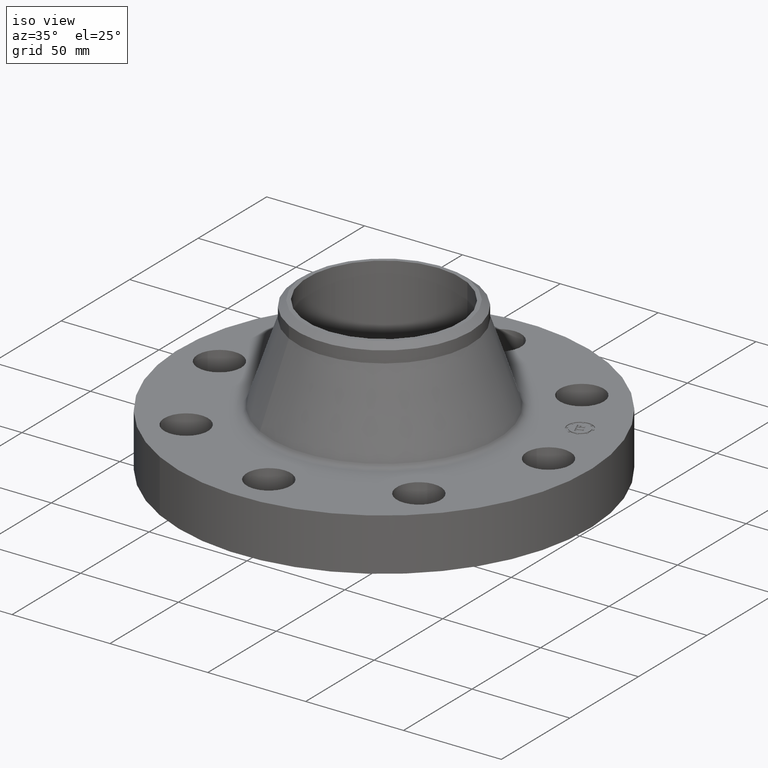
[diagram: clean part render]
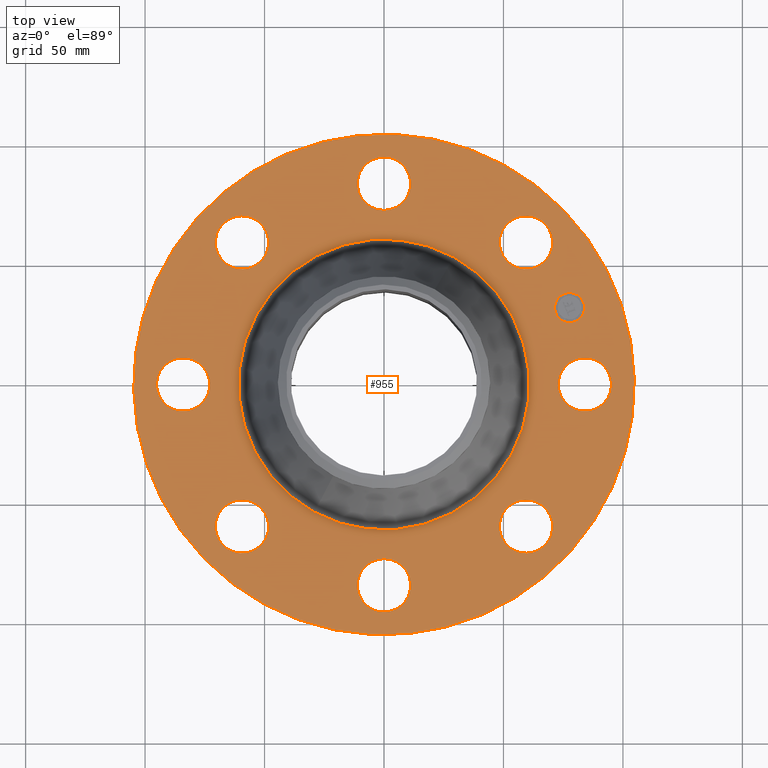
[diagram: tour spotlight — one face highlighted and labeled with its STEP entity id]
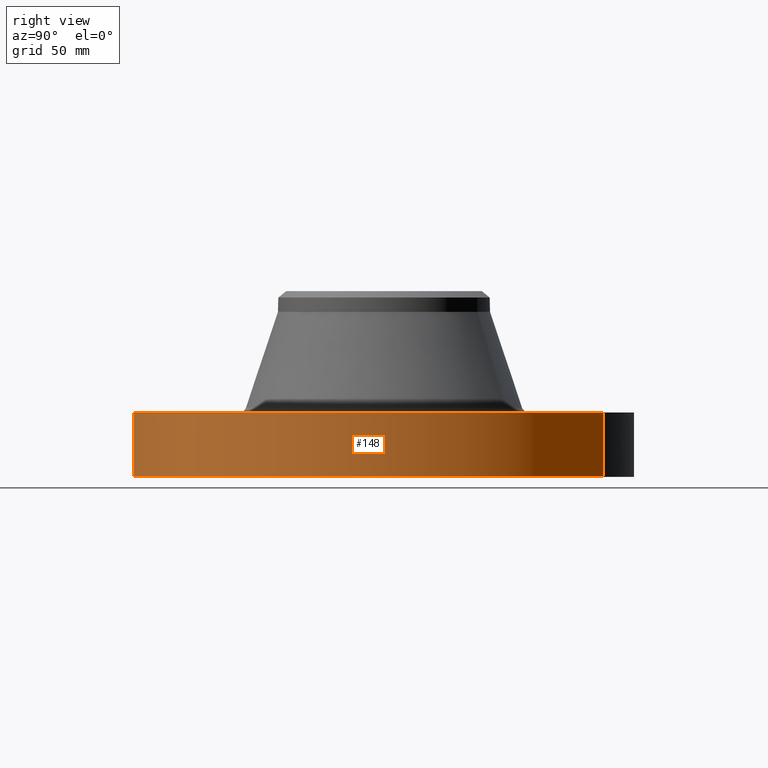
[diagram: tour spotlight — one face highlighted and labeled with its STEP entity id]
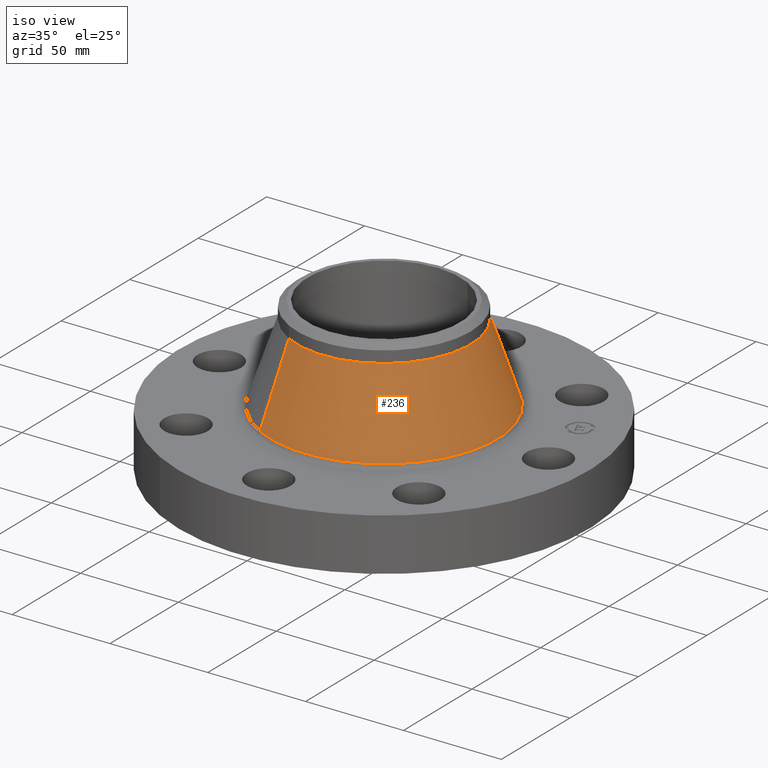
[diagram: tour spotlight — one face highlighted and labeled with its STEP entity id]
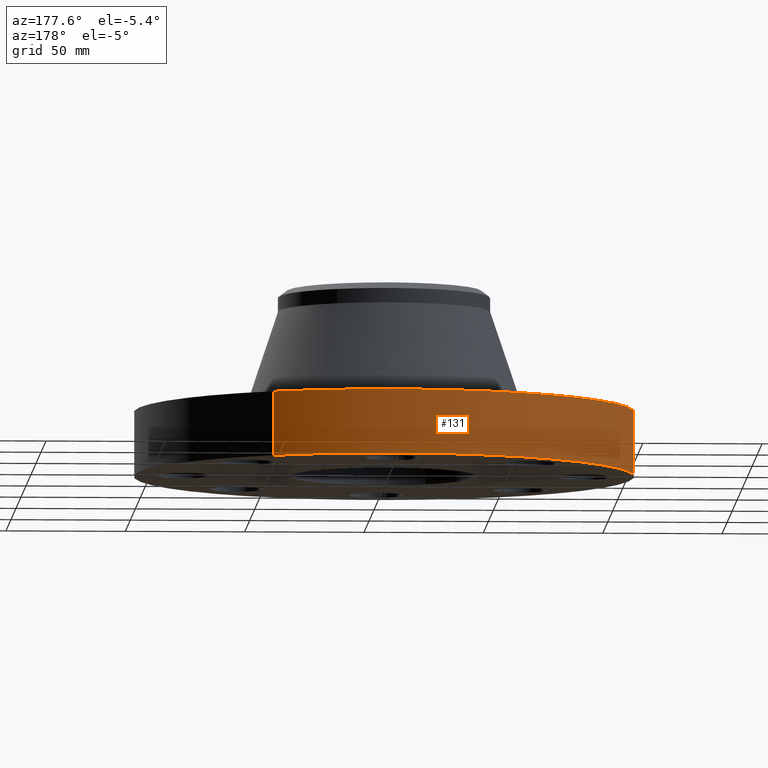
[diagram: tour spotlight — one face highlighted and labeled with its STEP entity id]
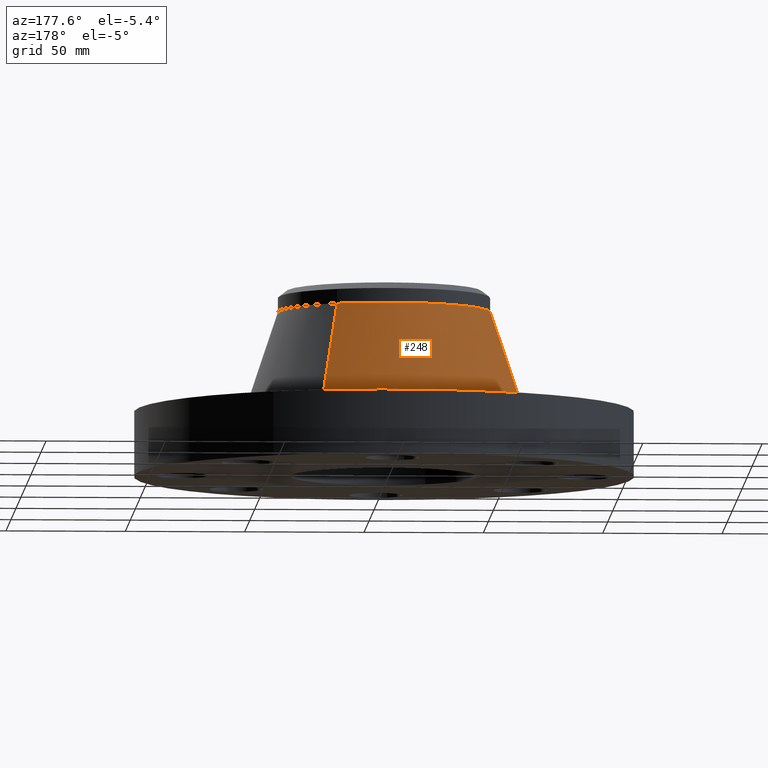
[diagram: tour spotlight — one face highlighted and labeled with its STEP entity id]
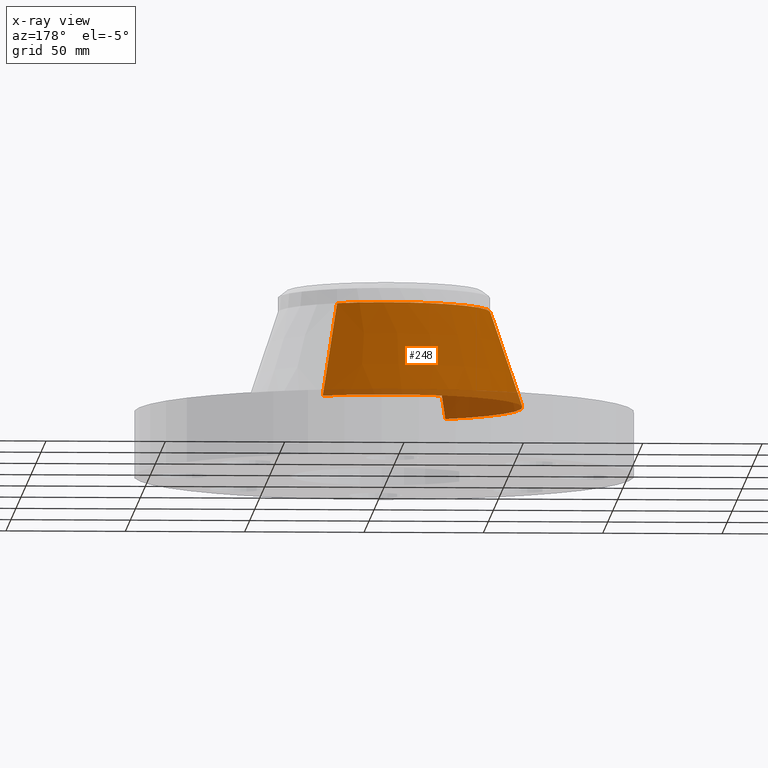
[diagram: x-ray of the same camera — body ghosted, this tour face saturated]
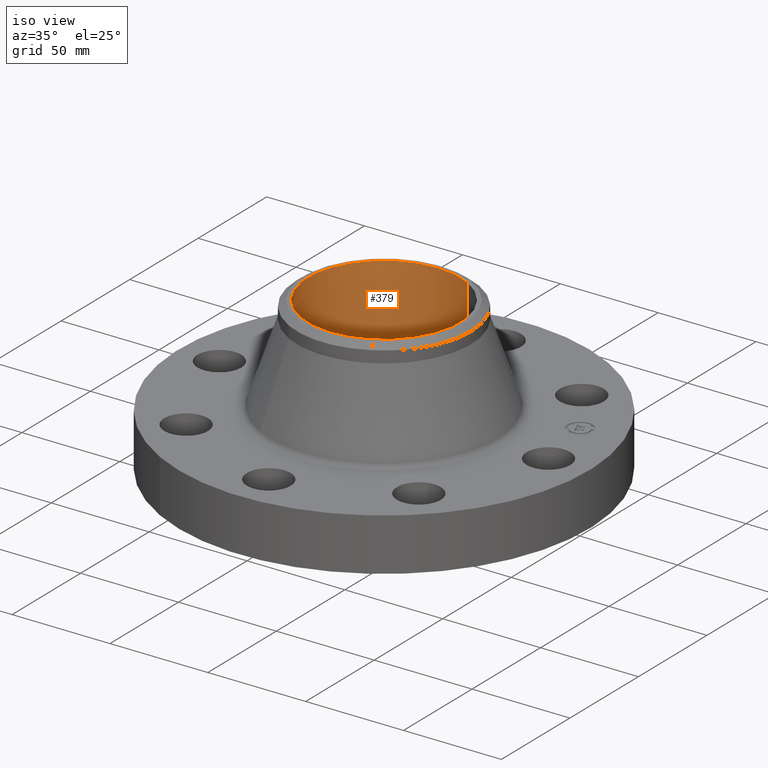
[diagram: tour spotlight — one face highlighted and labeled with its STEP entity id]
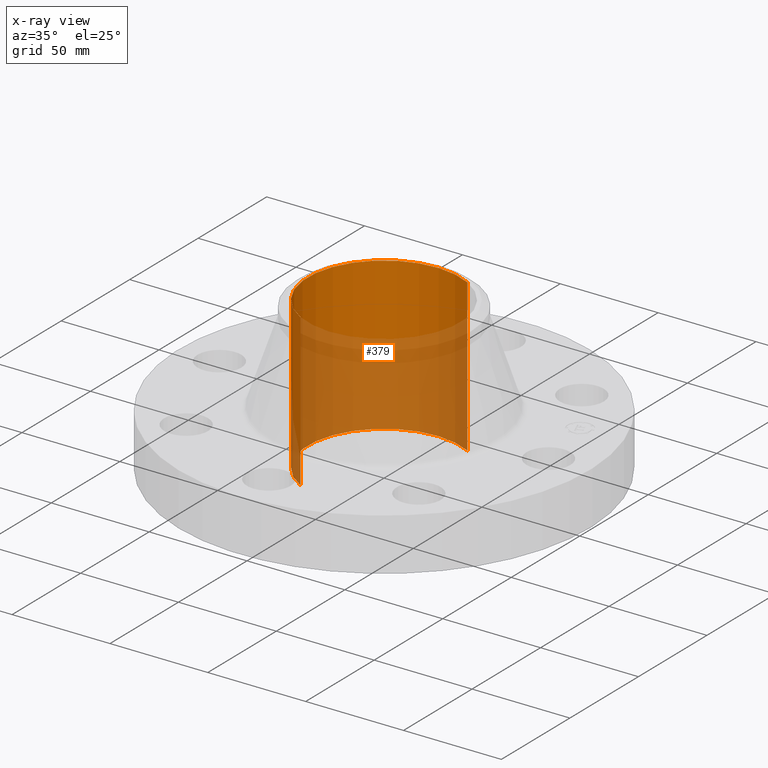
[diagram: x-ray of the same camera — body ghosted, this tour face saturated]
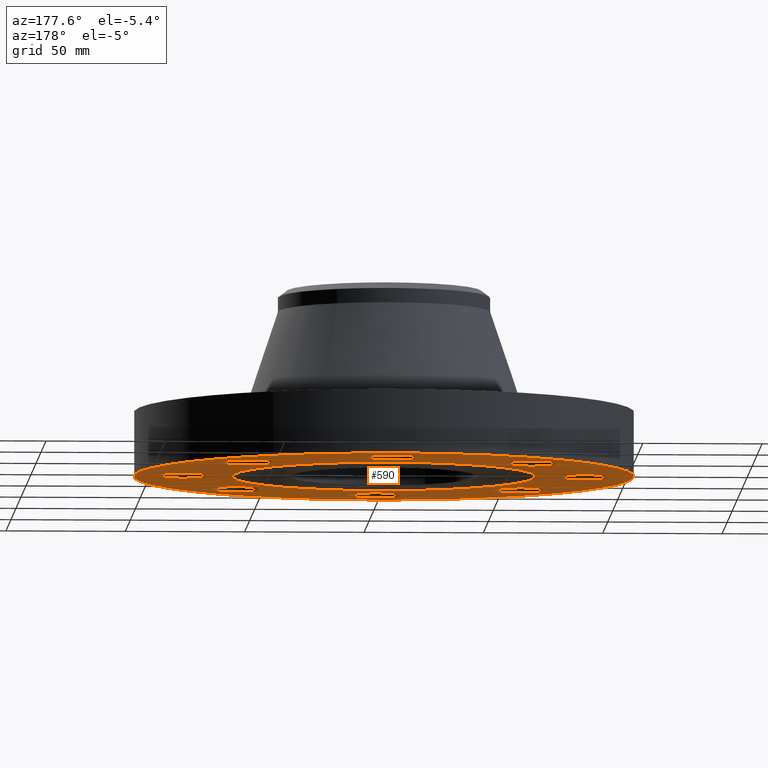
[diagram: tour spotlight — one face highlighted and labeled with its STEP entity id]
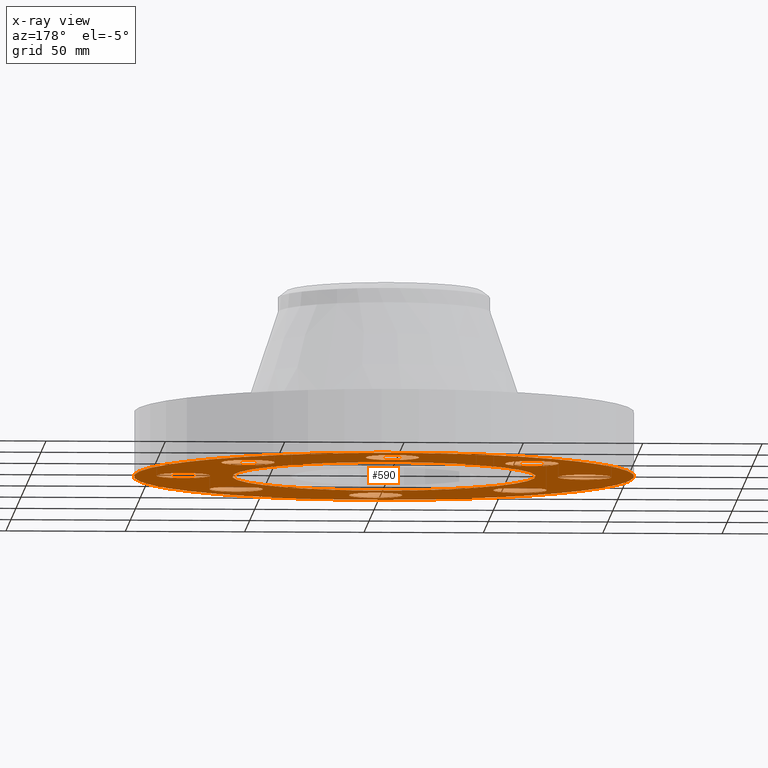
[diagram: x-ray of the same camera — body ghosted, this tour face saturated]
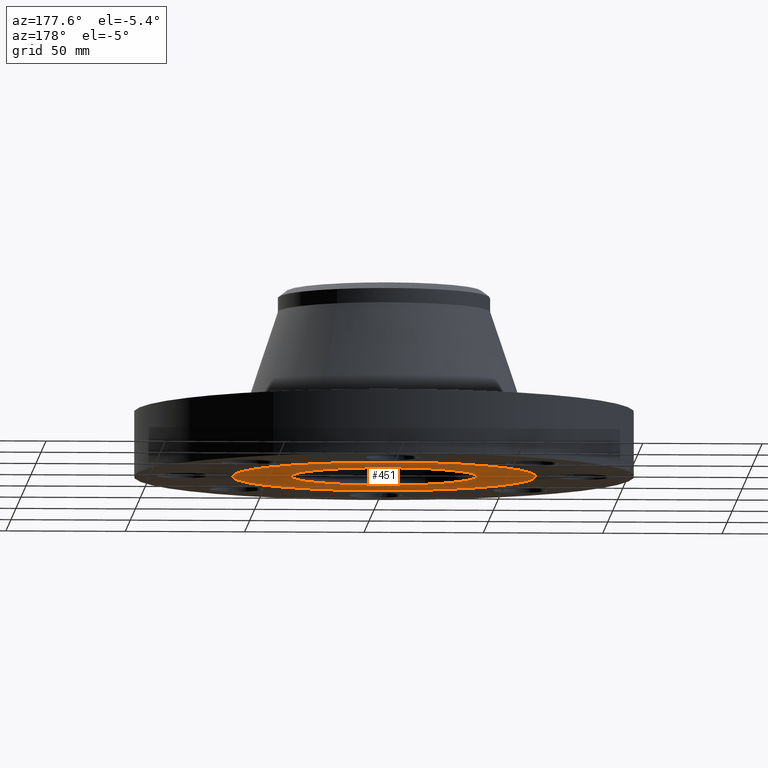
[diagram: tour spotlight — one face highlighted and labeled with its STEP entity id]
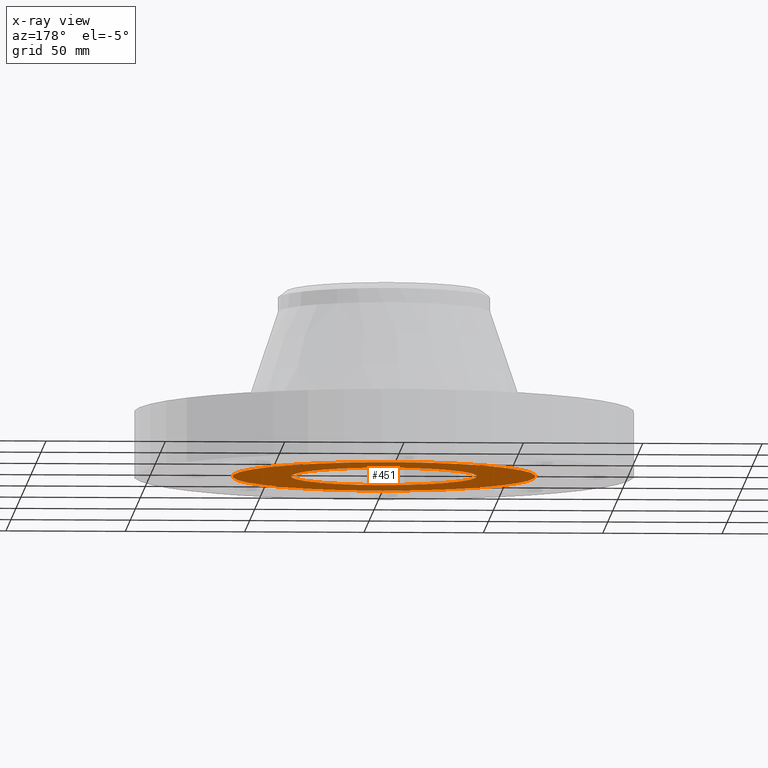
[diagram: x-ray of the same camera — body ghosted, this tour face saturated]
A machine part: a face-by-face anatomy tour. The part has 417 B-rep faces; the first image is the clean iso view, then the 8 largest visible faces are spotlighted one at a time (largest first), each with its STEP entity span.

Face 1 — top view, entity #955. In plain terms, the highlighted planar face has unit normal (0, 0, -1).
Definition (entity closure, byte-faithful):
#65=AXIS2_PLACEMENT_3D('Circle Axis2P3D',#63,#64,$) ;
#82=AXIS2_PLACEMENT_3D('Circle Axis2P3D',#80,#81,$) ;
#115=AXIS2_PLACEMENT_3D('Circle Axis2P3D',#113,#114,$) ;
#139=AXIS2_PLACEMENT_3D('Circle Axis2P3D',#137,#138,$) ;
#156=AXIS2_PLACEMENT_3D('Circle Axis2P3D',#154,#155,$) ;
#191=AXIS2_PLACEMENT_3D('Circle Axis2P3D',#189,#190,$) ;
#612=AXIS2_PLACEMENT_3D('Circle Axis2P3D',#610,#611,$) ;
#624=AXIS2_PLACEMENT_3D('Circle Axis2P3D',#622,#623,$) ;
#655=AXIS2_PLACEMENT_3D('Circle Axis2P3D',#653,#654,$) ;
#667=AXIS2_PLACEMENT_3D('Circle Axis2P3D',#665,#666,$) ;
#698=AXIS2_PLACEMENT_3D('Circle Axis2P3D',#696,#697,$) ;
#710=AXIS2_PLACEMENT_3D('Circle Axis2P3D',#708,#709,$) ;
#741=AXIS2_PLACEMENT_3D('Circle Axis2P3D',#739,#740,$) ;
#753=AXIS2_PLACEMENT_3D('Circle Axis2P3D',#751,#752,$) ;
#784=AXIS2_PLACEMENT_3D('Circle Axis2P3D',#782,#783,$) ;
#796=AXIS2_PLACEMENT_3D('Circle Axis2P3D',#794,#795,$) ;
#827=AXIS2_PLACEMENT_3D('Circle Axis2P3D',#825,#826,$) ;
#839=AXIS2_PLACEMENT_3D('Circle Axis2P3D',#837,#838,$) ;
#870=AXIS2_PLACEMENT_3D('Circle Axis2P3D',#868,#869,$) ;
#882=AXIS2_PLACEMENT_3D('Circle Axis2P3D',#880,#881,$) ;
#895=AXIS2_PLACEMENT_3D('Plane Axis2P3D',#892,#893,#894) ;
#939=AXIS2_PLACEMENT_3D('Circle Axis2P3D',#937,#938,$) ;
#948=AXIS2_PLACEMENT_3D('Circle Axis2P3D',#946,#947,$) ;
#46=CARTESIAN_POINT('Vertex',(2.92386367278,0.210947236987,1.06)) ;
#60=CARTESIAN_POINT('Vertex',(3.69613632725,-0.210947236987,1.06)) ;
#63=CARTESIAN_POINT('Axis2P3D Location',(3.31000000001,0.,1.06)) ;
#80=CARTESIAN_POINT('Axis2P3D Location',(3.31000000001,0.,1.06)) ;
#110=CARTESIAN_POINT('Vertex',(-1.97763034675,-3.62002806781,1.06)) ;
#113=CARTESIAN_POINT('Axis2P3D Location',(0.,0.,1.06)) ;
#117=CARTESIAN_POINT('Vertex',(1.97763034675,3.62002806781,1.06)) ;
#137=CARTESIAN_POINT('Axis2P3D Location',(0.,0.,1.06)) ;
#154=CARTESIAN_POINT('Axis2P3D Location',(0.,0.,1.06)) ;
#158=CARTESIAN_POINT('Vertex',(1.14876916276,2.10280784752,1.06)) ;
#160=CARTESIAN_POINT('Vertex',(-1.14876916276,-2.10280784752,1.06)) ;
#189=CARTESIAN_POINT('Axis2P3D Location',(0.,0.,1.06)) ;
#600=CARTESIAN_POINT('Vertex',(-2.21664605203,1.91832160854,1.06)) ;
#607=CARTESIAN_POINT('Vertex',(-2.46440083944,2.76272528293,1.06)) ;
#610=CARTESIAN_POINT('Axis2P3D Location',(-2.34052344574,2.34052344574,1.06)) ;
#622=CARTESIAN_POINT('Axis2P3D Location',(-2.34052344574,2.34052344574,1.06)) ;
#643=CARTESIAN_POINT('Vertex',(0.210947236987,-2.92386367278,1.06)) ;
#650=CARTESIAN_POINT('Vertex',(-0.210947236987,-3.69613632725,1.06)) ;
#653=CARTESIAN_POINT('Axis2P3D Location',(-3.56803423843E-016,-3.31000000001,1.06)) ;
#665=CARTESIAN_POINT('Axis2P3D Location',(-3.56803423843E-016,-3.31000000001,1.06)) ;
#686=CARTESIAN_POINT('Vertex',(-0.210947236987,2.92386367278,1.06)) ;
#693=CARTESIAN_POINT('Vertex',(0.210947236987,3.69613632725,1.06)) ;
#696=CARTESIAN_POINT('Axis2P3D Location',(-6.08037135779E-016,3.31000000001,1.06)) ;
#708=CARTESIAN_POINT('Axis2P3D Location',(-6.08037135779E-016,3.31000000001,1.06)) ;
#729=CARTESIAN_POINT('Vertex',(-1.91832160854,-2.21664605203,1.06)) ;
#736=CARTESIAN_POINT('Vertex',(-2.76272528293,-2.46440083944,1.06)) ;
#739=CARTESIAN_POINT('Axis2P3D Location',(-2.34052344574,-2.34052344574,1.06)) ;
#751=CARTESIAN_POINT('Axis2P3D Location',(-2.34052344574,-2.34052344574,1.06)) ;
#772=CARTESIAN_POINT('Vertex',(1.91832160854,2.21664605203,1.06)) ;
#779=CARTESIAN_POINT('Vertex',(2.76272528293,2.46440083944,1.06)) ;
#782=CARTESIAN_POINT('Axis2P3D Location',(2.34052344574,2.34052344574,1.06)) ;
#794=CARTESIAN_POINT('Axis2P3D Location',(2.34052344574,2.34052344574,1.06)) ;
#815=CARTESIAN_POINT('Vertex',(-2.92386367278,-0.210947236987,1.06)) ;
#822=CARTESIAN_POINT('Vertex',(-3.69613632725,0.210947236987,1.06)) ;
#825=CARTESIAN_POINT('Axis2P3D Location',(-3.31000000001,-4.05358090519E-016,1.06)) ;
#837=CARTESIAN_POINT('Axis2P3D Location',(-3.31000000001,-4.05358090519E-016,1.06)) ;
#858=CARTESIAN_POINT('Vertex',(2.21664605203,-1.91832160854,1.06)) ;
#865=CARTESIAN_POINT('Vertex',(2.46440083944,-2.76272528293,1.06)) ;
#868=CARTESIAN_POINT('Axis2P3D Location',(2.34052344574,-2.34052344574,1.06)) ;
#880=CARTESIAN_POINT('Axis2P3D Location',(2.34052344574,-2.34052344574,1.06)) ;
#892=CARTESIAN_POINT('Axis2P3D Location',(0.,4.12500000002,1.06)) ;
#937=CARTESIAN_POINT('Axis2P3D Location',(3.05804125262,1.26668216113,1.06)) ;
#941=CARTESIAN_POINT('Vertex',(2.96332710311,1.49534234543,1.06)) ;
#943=CARTESIAN_POINT('Vertex',(3.15275540214,1.03802197684,1.06)) ;
#946=CARTESIAN_POINT('Axis2P3D Location',(3.05804125262,1.26668216113,1.06)) ;
#64=DIRECTION('Axis2P3D Direction',(0.,-0.,-0.0393700787402)) ;
#81=DIRECTION('Axis2P3D Direction',(0.,-0.,-0.0393700787402)) ;
#114=DIRECTION('Axis2P3D Direction',(0.,0.,-0.0393700787402)) ;
#138=DIRECTION('Axis2P3D Direction',(0.,0.,-0.0393700787402)) ;
#155=DIRECTION('Axis2P3D Direction',(0.,0.,-0.0393700787402)) ;
#190=DIRECTION('Axis2P3D Direction',(0.,0.,-0.0393700787402)) ;
#611=DIRECTION('Axis2P3D Direction',(0.,0.,-0.0393700787402)) ;
#623=DIRECTION('Axis2P3D Direction',(0.,0.,-0.0393700787402)) ;
#654=DIRECTION('Axis2P3D Direction',(0.,-0.,-0.0393700787402)) ;
#666=DIRECTION('Axis2P3D Direction',(0.,-0.,-0.0393700787402)) ;
#697=DIRECTION('Axis2P3D Direction',(0.,0.,-0.0393700787402)) ;
#709=DIRECTION('Axis2P3D Direction',(0.,0.,-0.0393700787402)) ;
#740=DIRECTION('Axis2P3D Direction',(-0.,0.,-0.0393700787402)) ;
#752=DIRECTION('Axis2P3D Direction',(-0.,0.,-0.0393700787402)) ;
#783=DIRECTION('Axis2P3D Direction',(0.,0.,-0.0393700787402)) ;
#795=DIRECTION('Axis2P3D Direction',(0.,0.,-0.0393700787402)) ;
#826=DIRECTION('Axis2P3D Direction',(-0.,0.,-0.0393700787402)) ;
#838=DIRECTION('Axis2P3D Direction',(-0.,0.,-0.0393700787402)) ;
#869=DIRECTION('Axis2P3D Direction',(0.,-0.,-0.0393700787402)) ;
#881=DIRECTION('Axis2P3D Direction',(0.,-0.,-0.0393700787402)) ;
#893=DIRECTION('Axis2P3D Direction',(0.,0.,-0.0393700787402)) ;
#894=DIRECTION('Axis2P3D XDirection',(0.0393700787402,0.,0.)) ;
#938=DIRECTION('Axis2P3D Direction',(0.,0.,-0.0393700787402)) ;
#947=DIRECTION('Axis2P3D Direction',(0.,0.,-0.0393700787402)) ;
#898=ORIENTED_EDGE('',*,*,#141,.F.) ;
#899=ORIENTED_EDGE('',*,*,#119,.F.) ;
#902=ORIENTED_EDGE('',*,*,#67,.T.) ;
#903=ORIENTED_EDGE('',*,*,#84,.T.) ;
#906=ORIENTED_EDGE('',*,*,#193,.T.) ;
#907=ORIENTED_EDGE('',*,*,#162,.T.) ;
#910=ORIENTED_EDGE('',*,*,#884,.T.) ;
#911=ORIENTED_EDGE('',*,*,#872,.T.) ;
#914=ORIENTED_EDGE('',*,*,#669,.T.) ;
#915=ORIENTED_EDGE('',*,*,#657,.T.) ;
#918=ORIENTED_EDGE('',*,*,#755,.T.) ;
#919=ORIENTED_EDGE('',*,*,#743,.T.) ;
#922=ORIENTED_EDGE('',*,*,#841,.T.) ;
#923=ORIENTED_EDGE('',*,*,#829,.T.) ;
#926=ORIENTED_EDGE('',*,*,#626,.T.) ;
#927=ORIENTED_EDGE('',*,*,#614,.T.) ;
#930=ORIENTED_EDGE('',*,*,#712,.T.) ;
#931=ORIENTED_EDGE('',*,*,#700,.T.) ;
#934=ORIENTED_EDGE('',*,*,#798,.T.) ;
#935=ORIENTED_EDGE('',*,*,#786,.T.) ;
#952=ORIENTED_EDGE('',*,*,#945,.T.) ;
#953=ORIENTED_EDGE('',*,*,#950,.T.) ;
#904=FACE_BOUND('',#901,.T.) ;
#908=FACE_BOUND('',#905,.T.) ;
#912=FACE_BOUND('',#909,.T.) ;
#916=FACE_BOUND('',#913,.T.) ;
#920=FACE_BOUND('',#917,.T.) ;
#924=FACE_BOUND('',#921,.T.) ;
#928=FACE_BOUND('',#925,.T.) ;
#932=FACE_BOUND('',#929,.T.) ;
#936=FACE_BOUND('',#933,.T.) ;
#954=FACE_BOUND('',#951,.T.) ;
#955=ADVANCED_FACE('PartBody',(#900,#904,#908,#912,#916,#920,#924,#928,#932,#936,#954),#896,.F.) ;
#66=CIRCLE('generated circle',#65,0.440000000002) ;
#83=CIRCLE('generated circle',#82,0.440000000002) ;
#116=CIRCLE('generated circle',#115,4.12500000002) ;
#140=CIRCLE('generated circle',#139,4.12500000002) ;
#157=CIRCLE('generated circle',#156,2.39613677258) ;
#192=CIRCLE('generated circle',#191,2.39613677258) ;
#613=CIRCLE('generated circle',#612,0.440000000002) ;
#625=CIRCLE('generated circle',#624,0.440000000002) ;
#656=CIRCLE('generated circle',#655,0.440000000002) ;
#668=CIRCLE('generated circle',#667,0.440000000002) ;
#699=CIRCLE('generated circle',#698,0.440000000002) ;
#711=CIRCLE('generated circle',#710,0.440000000002) ;
#742=CIRCLE('generated circle',#741,0.440000000002) ;
#754=CIRCLE('generated circle',#753,0.440000000002) ;
#785=CIRCLE('generated circle',#784,0.440000000002) ;
#797=CIRCLE('generated circle',#796,0.440000000002) ;
#828=CIRCLE('generated circle',#827,0.440000000002) ;
#840=CIRCLE('generated circle',#839,0.440000000002) ;
#871=CIRCLE('generated circle',#870,0.440000000002) ;
#883=CIRCLE('generated circle',#882,0.440000000002) ;
#940=CIRCLE('generated circle',#939,0.247500000001) ;
#949=CIRCLE('generated circle',#948,0.247500000001) ;
#67=EDGE_CURVE('',#47,#61,#66,.T.) ;
#84=EDGE_CURVE('',#61,#47,#83,.T.) ;
#119=EDGE_CURVE('',#111,#118,#116,.T.) ;
#141=EDGE_CURVE('',#118,#111,#140,.T.) ;
#162=EDGE_CURVE('',#159,#161,#157,.T.) ;
#193=EDGE_CURVE('',#161,#159,#192,.T.) ;
#614=EDGE_CURVE('',#601,#608,#613,.T.) ;
#626=EDGE_CURVE('',#608,#601,#625,.T.) ;
#657=EDGE_CURVE('',#644,#651,#656,.T.) ;
#669=EDGE_CURVE('',#651,#644,#668,.T.) ;
#700=EDGE_CURVE('',#687,#694,#699,.T.) ;
#712=EDGE_CURVE('',#694,#687,#711,.T.) ;
#743=EDGE_CURVE('',#730,#737,#742,.T.) ;
#755=EDGE_CURVE('',#737,#730,#754,.T.) ;
#786=EDGE_CURVE('',#773,#780,#785,.T.) ;
#798=EDGE_CURVE('',#780,#773,#797,.T.) ;
#829=EDGE_CURVE('',#816,#823,#828,.T.) ;
#841=EDGE_CURVE('',#823,#816,#840,.T.) ;
#872=EDGE_CURVE('',#859,#866,#871,.T.) ;
#884=EDGE_CURVE('',#866,#859,#883,.T.) ;
#945=EDGE_CURVE('',#942,#944,#940,.T.) ;
#950=EDGE_CURVE('',#944,#942,#949,.T.) ;
#897=EDGE_LOOP('',(#898,#899)) ;
#901=EDGE_LOOP('',(#902,#903)) ;
#905=EDGE_LOOP('',(#906,#907)) ;
#909=EDGE_LOOP('',(#910,#911)) ;
#913=EDGE_LOOP('',(#914,#915)) ;
#917=EDGE_LOOP('',(#918,#919)) ;
#921=EDGE_LOOP('',(#922,#923)) ;
#925=EDGE_LOOP('',(#926,#927)) ;
#929=EDGE_LOOP('',(#930,#931)) ;
#933=EDGE_LOOP('',(#934,#935)) ;
#951=EDGE_LOOP('',(#952,#953)) ;
#900=FACE_OUTER_BOUND('',#897,.T.) ;
#896=PLANE('',#895) ;
#47=VERTEX_POINT('',#46) ;
#61=VERTEX_POINT('',#60) ;
#111=VERTEX_POINT('',#110) ;
#118=VERTEX_POINT('',#117) ;
#159=VERTEX_POINT('',#158) ;
#161=VERTEX_POINT('',#160) ;
#601=VERTEX_POINT('',#600) ;
#608=VERTEX_POINT('',#607) ;
#644=VERTEX_POINT('',#643) ;
#651=VERTEX_POINT('',#650) ;
#687=VERTEX_POINT('',#686) ;
#694=VERTEX_POINT('',#693) ;
#730=VERTEX_POINT('',#729) ;
#737=VERTEX_POINT('',#736) ;
#773=VERTEX_POINT('',#772) ;
#780=VERTEX_POINT('',#779) ;
#816=VERTEX_POINT('',#815) ;
#823=VERTEX_POINT('',#822) ;
#859=VERTEX_POINT('',#858) ;
#866=VERTEX_POINT('',#865) ;
#942=VERTEX_POINT('',#941) ;
#944=VERTEX_POINT('',#943) ;

Face 2 — right view, entity #148. In plain terms, the highlighted cylindrical surface (partial cylindrical patch) has radius 104.775 mm, axis along (0, 0, -1).
Definition (entity closure, byte-faithful):
#95=AXIS2_PLACEMENT_3D('Cylinder Axis2P3D',#92,#93,#94) ;
#134=AXIS2_PLACEMENT_3D('Circle Axis2P3D',#132,#133,$) ;
#139=AXIS2_PLACEMENT_3D('Circle Axis2P3D',#137,#138,$) ;
#92=CARTESIAN_POINT('Axis2P3D Location',(0.,0.,1.53000000001)) ;
#101=CARTESIAN_POINT('Vertex',(-1.97763034675,-3.62002806781,2.79741234551E-016)) ;
#103=CARTESIAN_POINT('Vertex',(1.97763034675,3.62002806781,2.79741234551E-016)) ;
#106=CARTESIAN_POINT('Line Origine',(-1.97763034675,-3.62002806781,0.530000000002)) ;
#110=CARTESIAN_POINT('Vertex',(-1.97763034675,-3.62002806781,1.06)) ;
#117=CARTESIAN_POINT('Vertex',(1.97763034675,3.62002806781,1.06)) ;
#120=CARTESIAN_POINT('Line Origine',(1.97763034675,3.62002806781,0.530000000002)) ;
#132=CARTESIAN_POINT('Axis2P3D Location',(0.,0.,0.)) ;
#137=CARTESIAN_POINT('Axis2P3D Location',(0.,0.,1.06)) ;
#93=DIRECTION('Axis2P3D Direction',(0.,0.,-0.0393700787402)) ;
#94=DIRECTION('Axis2P3D XDirection',(0.0188750212049,0.0345504945626,0.)) ;
#107=DIRECTION('Vector Direction',(0.,0.,-0.0393700787402)) ;
#121=DIRECTION('Vector Direction',(0.,0.,-0.0393700787402)) ;
#133=DIRECTION('Axis2P3D Direction',(0.,0.,-0.0393700787402)) ;
#138=DIRECTION('Axis2P3D Direction',(0.,0.,-0.0393700787402)) ;
#108=VECTOR('Line Direction',#107,0.0393700787402) ;
#122=VECTOR('Line Direction',#121,0.0393700787402) ;
#143=ORIENTED_EDGE('',*,*,#136,.F.) ;
#144=ORIENTED_EDGE('',*,*,#124,.T.) ;
#145=ORIENTED_EDGE('',*,*,#141,.T.) ;
#146=ORIENTED_EDGE('',*,*,#112,.F.) ;
#148=ADVANCED_FACE('PartBody',(#147),#96,.T.) ;
#135=CIRCLE('generated circle',#134,4.12500000002) ;
#140=CIRCLE('generated circle',#139,4.12500000002) ;
#96=CYLINDRICAL_SURFACE('generated cylinder',#95,4.12500000002) ;
#112=EDGE_CURVE('',#102,#111,#109,.F.) ;
#124=EDGE_CURVE('',#104,#118,#123,.F.) ;
#136=EDGE_CURVE('',#104,#102,#135,.T.) ;
#141=EDGE_CURVE('',#118,#111,#140,.T.) ;
#142=EDGE_LOOP('',(#143,#144,#145,#146)) ;
#147=FACE_OUTER_BOUND('',#142,.T.) ;
#109=LINE('Line',#106,#108) ;
#123=LINE('Line',#120,#122) ;
#102=VERTEX_POINT('',#101) ;
#104=VERTEX_POINT('',#103) ;
#111=VERTEX_POINT('',#110) ;
#118=VERTEX_POINT('',#117) ;

Face 3 — iso view, entity #236. In plain terms, the highlighted conical surface has half-angle 18.658 deg.
Definition (entity closure, byte-faithful):
#172=AXIS2_PLACEMENT_3D('Circle Axis2P3D',#170,#171,$) ;
#209=AXIS2_PLACEMENT_3D('Cone Axis2P3D',#206,#207,#208) ;
#220=AXIS2_PLACEMENT_3D('Circle Axis2P3D',#218,#219,$) ;
#167=CARTESIAN_POINT('Vertex',(1.09426162229,2.00303246395,1.14160988584)) ;
#170=CARTESIAN_POINT('Axis2P3D Location',(0.,0.,1.14160988584)) ;
#174=CARTESIAN_POINT('Vertex',(-1.09426162229,-2.00303246395,1.14160988584)) ;
#206=CARTESIAN_POINT('Axis2P3D Location',(0.,0.,2.71845634604)) ;
#211=CARTESIAN_POINT('Line Origine',(0.966628157427,1.76940097363,1.93003311594)) ;
#215=CARTESIAN_POINT('Vertex',(0.838994692561,1.53576948331,2.71845634604)) ;
#218=CARTESIAN_POINT('Axis2P3D Location',(0.,0.,2.71845634604)) ;
#222=CARTESIAN_POINT('Vertex',(-0.838994692561,-1.53576948331,2.71845634604)) ;
#225=CARTESIAN_POINT('Line Origine',(-0.966628157427,-1.76940097363,1.93003311594)) ;
#171=DIRECTION('Axis2P3D Direction',(0.,0.,-0.0393700787402)) ;
#207=DIRECTION('Axis2P3D Direction',(0.,0.,-0.0393700787402)) ;
#208=DIRECTION('Axis2P3D XDirection',(-0.0188750212049,-0.0345504945626,0.)) ;
#212=DIRECTION('Vector Direction',(0.00603845182398,0.0110533119219,-0.0373009985809)) ;
#219=DIRECTION('Axis2P3D Direction',(0.,0.,-0.0393700787402)) ;
#226=DIRECTION('Vector Direction',(-0.00603845182398,-0.0110533119219,-0.0373009985809)) ;
#213=VECTOR('Line Direction',#212,0.0393700787402) ;
#227=VECTOR('Line Direction',#226,0.0393700787402) ;
#231=ORIENTED_EDGE('',*,*,#176,.F.) ;
#232=ORIENTED_EDGE('',*,*,#217,.T.) ;
#233=ORIENTED_EDGE('',*,*,#224,.T.) ;
#234=ORIENTED_EDGE('',*,*,#229,.F.) ;
#236=ADVANCED_FACE('PartBody',(#235),#210,.T.) ;
#173=CIRCLE('generated circle',#172,2.2824433289) ;
#221=CIRCLE('generated circle',#220,1.75000000001) ;
#210=CONICAL_SURFACE('Cone',#209,1.75000000001,0.325642534325) ;
#176=EDGE_CURVE('',#168,#175,#173,.T.) ;
#217=EDGE_CURVE('',#168,#216,#214,.F.) ;
#224=EDGE_CURVE('',#216,#223,#221,.T.) ;
#229=EDGE_CURVE('',#175,#223,#228,.F.) ;
#230=EDGE_LOOP('',(#231,#232,#233,#234)) ;
#235=FACE_OUTER_BOUND('',#230,.T.) ;
#214=LINE('Line',#211,#213) ;
#228=LINE('Line',#225,#227) ;
#168=VERTEX_POINT('',#167) ;
#175=VERTEX_POINT('',#174) ;
#216=VERTEX_POINT('',#215) ;
#223=VERTEX_POINT('',#222) ;

Face 4 — auxiliary view, entity #131. In plain terms, the highlighted cylindrical surface (partial cylindrical patch) has radius 104.775 mm, axis along (0, 0, -1).
Definition (entity closure, byte-faithful):
#95=AXIS2_PLACEMENT_3D('Cylinder Axis2P3D',#92,#93,#94) ;
#99=AXIS2_PLACEMENT_3D('Circle Axis2P3D',#97,#98,$) ;
#115=AXIS2_PLACEMENT_3D('Circle Axis2P3D',#113,#114,$) ;
#92=CARTESIAN_POINT('Axis2P3D Location',(0.,0.,1.53000000001)) ;
#97=CARTESIAN_POINT('Axis2P3D Location',(0.,0.,0.)) ;
#101=CARTESIAN_POINT('Vertex',(-1.97763034675,-3.62002806781,2.79741234551E-016)) ;
#103=CARTESIAN_POINT('Vertex',(1.97763034675,3.62002806781,2.79741234551E-016)) ;
#106=CARTESIAN_POINT('Line Origine',(-1.97763034675,-3.62002806781,0.530000000002)) ;
#110=CARTESIAN_POINT('Vertex',(-1.97763034675,-3.62002806781,1.06)) ;
#113=CARTESIAN_POINT('Axis2P3D Location',(0.,0.,1.06)) ;
#117=CARTESIAN_POINT('Vertex',(1.97763034675,3.62002806781,1.06)) ;
#120=CARTESIAN_POINT('Line Origine',(1.97763034675,3.62002806781,0.530000000002)) ;
#93=DIRECTION('Axis2P3D Direction',(0.,0.,-0.0393700787402)) ;
#94=DIRECTION('Axis2P3D XDirection',(0.0188750212049,0.0345504945626,0.)) ;
#98=DIRECTION('Axis2P3D Direction',(0.,0.,-0.0393700787402)) ;
#107=DIRECTION('Vector Direction',(0.,0.,-0.0393700787402)) ;
#114=DIRECTION('Axis2P3D Direction',(0.,0.,-0.0393700787402)) ;
#121=DIRECTION('Vector Direction',(0.,0.,-0.0393700787402)) ;
#108=VECTOR('Line Direction',#107,0.0393700787402) ;
#122=VECTOR('Line Direction',#121,0.0393700787402) ;
#126=ORIENTED_EDGE('',*,*,#105,.F.) ;
#127=ORIENTED_EDGE('',*,*,#112,.T.) ;
#128=ORIENTED_EDGE('',*,*,#119,.T.) ;
#129=ORIENTED_EDGE('',*,*,#124,.F.) ;
#131=ADVANCED_FACE('PartBody',(#130),#96,.T.) ;
#100=CIRCLE('generated circle',#99,4.12500000002) ;
#116=CIRCLE('generated circle',#115,4.12500000002) ;
#96=CYLINDRICAL_SURFACE('generated cylinder',#95,4.12500000002) ;
#105=EDGE_CURVE('',#102,#104,#100,.T.) ;
#112=EDGE_CURVE('',#102,#111,#109,.F.) ;
#119=EDGE_CURVE('',#111,#118,#116,.T.) ;
#124=EDGE_CURVE('',#104,#118,#123,.F.) ;
#125=EDGE_LOOP('',(#126,#127,#128,#129)) ;
#130=FACE_OUTER_BOUND('',#125,.T.) ;
#109=LINE('Line',#106,#108) ;
#123=LINE('Line',#120,#122) ;
#102=VERTEX_POINT('',#101) ;
#104=VERTEX_POINT('',#103) ;
#111=VERTEX_POINT('',#110) ;
#118=VERTEX_POINT('',#117) ;

Face 5 — auxiliary view, entity #248. An x-ray twin of the same camera follows (body ghosted, this face saturated) — the face is partly hidden behind the body. In plain terms, the highlighted conical surface has half-angle 18.658 deg.
Definition (entity closure, byte-faithful):
#196=AXIS2_PLACEMENT_3D('Circle Axis2P3D',#194,#195,$) ;
#209=AXIS2_PLACEMENT_3D('Cone Axis2P3D',#206,#207,#208) ;
#239=AXIS2_PLACEMENT_3D('Circle Axis2P3D',#237,#238,$) ;
#167=CARTESIAN_POINT('Vertex',(1.09426162229,2.00303246395,1.14160988584)) ;
#174=CARTESIAN_POINT('Vertex',(-1.09426162229,-2.00303246395,1.14160988584)) ;
#194=CARTESIAN_POINT('Axis2P3D Location',(0.,0.,1.14160988584)) ;
#206=CARTESIAN_POINT('Axis2P3D Location',(0.,0.,2.71845634604)) ;
#211=CARTESIAN_POINT('Line Origine',(0.966628157427,1.76940097363,1.93003311594)) ;
#215=CARTESIAN_POINT('Vertex',(0.838994692561,1.53576948331,2.71845634604)) ;
#222=CARTESIAN_POINT('Vertex',(-0.838994692561,-1.53576948331,2.71845634604)) ;
#225=CARTESIAN_POINT('Line Origine',(-0.966628157427,-1.76940097363,1.93003311594)) ;
#237=CARTESIAN_POINT('Axis2P3D Location',(0.,0.,2.71845634604)) ;
#195=DIRECTION('Axis2P3D Direction',(0.,0.,-0.0393700787402)) ;
#207=DIRECTION('Axis2P3D Direction',(0.,0.,-0.0393700787402)) ;
#208=DIRECTION('Axis2P3D XDirection',(-0.0188750212049,-0.0345504945626,0.)) ;
#212=DIRECTION('Vector Direction',(0.00603845182398,0.0110533119219,-0.0373009985809)) ;
#226=DIRECTION('Vector Direction',(-0.00603845182398,-0.0110533119219,-0.0373009985809)) ;
#238=DIRECTION('Axis2P3D Direction',(0.,0.,-0.0393700787402)) ;
#213=VECTOR('Line Direction',#212,0.0393700787402) ;
#227=VECTOR('Line Direction',#226,0.0393700787402) ;
#243=ORIENTED_EDGE('',*,*,#198,.F.) ;
#244=ORIENTED_EDGE('',*,*,#229,.T.) ;
#245=ORIENTED_EDGE('',*,*,#241,.T.) ;
#246=ORIENTED_EDGE('',*,*,#217,.F.) ;
#248=ADVANCED_FACE('PartBody',(#247),#210,.T.) ;
#197=CIRCLE('generated circle',#196,2.2824433289) ;
#240=CIRCLE('generated circle',#239,1.75000000001) ;
#210=CONICAL_SURFACE('Cone',#209,1.75000000001,0.325642534325) ;
#198=EDGE_CURVE('',#175,#168,#197,.T.) ;
#217=EDGE_CURVE('',#168,#216,#214,.F.) ;
#229=EDGE_CURVE('',#175,#223,#228,.F.) ;
#241=EDGE_CURVE('',#223,#216,#240,.T.) ;
#242=EDGE_LOOP('',(#243,#244,#245,#246)) ;
#247=FACE_OUTER_BOUND('',#242,.T.) ;
#214=LINE('Line',#211,#213) ;
#228=LINE('Line',#225,#227) ;
#168=VERTEX_POINT('',#167) ;
#175=VERTEX_POINT('',#174) ;
#216=VERTEX_POINT('',#215) ;
#223=VERTEX_POINT('',#222) ;

Face 6 — iso view, entity #379. An x-ray twin of the same camera follows (body ghosted, this face saturated) — the face is partly hidden behind the body. In plain terms, the highlighted cylindrical surface (partial cylindrical patch) has radius 38.9636 mm, axis along (0, 0, -1).
Definition (entity closure, byte-faithful):
#343=AXIS2_PLACEMENT_3D('Cylinder Axis2P3D',#340,#341,#342) ;
#347=AXIS2_PLACEMENT_3D('Circle Axis2P3D',#345,#346,$) ;
#363=AXIS2_PLACEMENT_3D('Circle Axis2P3D',#361,#362,$) ;
#340=CARTESIAN_POINT('Axis2P3D Location',(0.,0.,1.53000000001)) ;
#345=CARTESIAN_POINT('Axis2P3D Location',(0.,0.,3.06000000001)) ;
#349=CARTESIAN_POINT('Vertex',(-0.735438776222,-1.34621164995,3.06000000001)) ;
#351=CARTESIAN_POINT('Vertex',(0.735438776222,1.34621164995,3.06000000001)) ;
#354=CARTESIAN_POINT('Line Origine',(-0.735438776222,-1.34621164995,1.53000000001)) ;
#358=CARTESIAN_POINT('Vertex',(-0.735438776222,-1.34621164995,-3.07715358006E-015)) ;
#361=CARTESIAN_POINT('Axis2P3D Location',(0.,0.,-3.35689481461E-015)) ;
#365=CARTESIAN_POINT('Vertex',(0.735438776222,1.34621164995,-3.07715358006E-015)) ;
#368=CARTESIAN_POINT('Line Origine',(0.735438776222,1.34621164995,1.53000000001)) ;
#341=DIRECTION('Axis2P3D Direction',(0.,0.,-0.0393700787402)) ;
#342=DIRECTION('Axis2P3D XDirection',(0.0188750212049,0.0345504945626,0.)) ;
#346=DIRECTION('Axis2P3D Direction',(0.,0.,-0.0393700787402)) ;
#355=DIRECTION('Vector Direction',(0.,0.,-0.0393700787402)) ;
#362=DIRECTION('Axis2P3D Direction',(0.,0.,-0.0393700787402)) ;
#369=DIRECTION('Vector Direction',(0.,0.,-0.0393700787402)) ;
#356=VECTOR('Line Direction',#355,0.0393700787402) ;
#370=VECTOR('Line Direction',#369,0.0393700787402) ;
#374=ORIENTED_EDGE('',*,*,#353,.F.) ;
#375=ORIENTED_EDGE('',*,*,#360,.T.) ;
#376=ORIENTED_EDGE('',*,*,#367,.T.) ;
#377=ORIENTED_EDGE('',*,*,#372,.F.) ;
#379=ADVANCED_FACE('PartBody',(#378),#344,.F.) ;
#348=CIRCLE('generated circle',#347,1.53400000001) ;
#364=CIRCLE('generated circle',#363,1.53400000001) ;
#344=CYLINDRICAL_SURFACE('generated cylinder',#343,1.53400000001) ;
#353=EDGE_CURVE('',#350,#352,#348,.T.) ;
#360=EDGE_CURVE('',#350,#359,#357,.T.) ;
#367=EDGE_CURVE('',#359,#366,#364,.T.) ;
#372=EDGE_CURVE('',#352,#366,#371,.T.) ;
#373=EDGE_LOOP('',(#374,#375,#376,#377)) ;
#378=FACE_OUTER_BOUND('',#373,.T.) ;
#357=LINE('Line',#354,#356) ;
#371=LINE('Line',#368,#370) ;
#350=VERTEX_POINT('',#349) ;
#352=VERTEX_POINT('',#351) ;
#359=VERTEX_POINT('',#358) ;
#366=VERTEX_POINT('',#365) ;

Face 7 — auxiliary view, entity #590. An x-ray twin of the same camera follows (body ghosted, this face saturated) — the face is partly hidden behind the body. In plain terms, the highlighted planar face has unit normal (0, 0, -1).
Definition (entity closure, byte-faithful):
#51=AXIS2_PLACEMENT_3D('Circle Axis2P3D',#49,#50,$) ;
#77=AXIS2_PLACEMENT_3D('Circle Axis2P3D',#75,#76,$) ;
#99=AXIS2_PLACEMENT_3D('Circle Axis2P3D',#97,#98,$) ;
#134=AXIS2_PLACEMENT_3D('Circle Axis2P3D',#132,#133,$) ;
#427=AXIS2_PLACEMENT_3D('Plane Axis2P3D',#424,#425,#426) ;
#431=AXIS2_PLACEMENT_3D('Circle Axis2P3D',#429,#430,$) ;
#440=AXIS2_PLACEMENT_3D('Circle Axis2P3D',#438,#439,$) ;
#466=AXIS2_PLACEMENT_3D('Circle Axis2P3D',#464,#465,$) ;
#475=AXIS2_PLACEMENT_3D('Circle Axis2P3D',#473,#474,$) ;
#484=AXIS2_PLACEMENT_3D('Circle Axis2P3D',#482,#483,$) ;
#493=AXIS2_PLACEMENT_3D('Circle Axis2P3D',#491,#492,$) ;
#502=AXIS2_PLACEMENT_3D('Circle Axis2P3D',#500,#501,$) ;
#511=AXIS2_PLACEMENT_3D('Circle Axis2P3D',#509,#510,$) ;
#520=AXIS2_PLACEMENT_3D('Circle Axis2P3D',#518,#519,$) ;
#529=AXIS2_PLACEMENT_3D('Circle Axis2P3D',#527,#528,$) ;
#538=AXIS2_PLACEMENT_3D('Circle Axis2P3D',#536,#537,$) ;
#547=AXIS2_PLACEMENT_3D('Circle Axis2P3D',#545,#546,$) ;
#556=AXIS2_PLACEMENT_3D('Circle Axis2P3D',#554,#555,$) ;
#565=AXIS2_PLACEMENT_3D('Circle Axis2P3D',#563,#564,$) ;
#574=AXIS2_PLACEMENT_3D('Circle Axis2P3D',#572,#573,$) ;
#583=AXIS2_PLACEMENT_3D('Circle Axis2P3D',#581,#582,$) ;
#44=CARTESIAN_POINT('Vertex',(2.92386367278,0.210947236987,-1.39870617276E-016)) ;
#49=CARTESIAN_POINT('Axis2P3D Location',(3.31000000001,0.,0.)) ;
#53=CARTESIAN_POINT('Vertex',(3.69613632725,-0.210947236987,-1.39870617276E-016)) ;
#75=CARTESIAN_POINT('Axis2P3D Location',(3.31000000001,0.,0.)) ;
#97=CARTESIAN_POINT('Axis2P3D Location',(0.,0.,0.)) ;
#101=CARTESIAN_POINT('Vertex',(-1.97763034675,-3.62002806781,2.79741234551E-016)) ;
#103=CARTESIAN_POINT('Vertex',(1.97763034675,3.62002806781,2.79741234551E-016)) ;
#132=CARTESIAN_POINT('Axis2P3D Location',(0.,0.,0.)) ;
#424=CARTESIAN_POINT('Axis2P3D Location',(0.,1.53400000001,0.)) ;
#429=CARTESIAN_POINT('Axis2P3D Location',(0.,0.,0.)) ;
#433=CARTESIAN_POINT('Vertex',(-1.19856384652,-2.19395640473,0.)) ;
#435=CARTESIAN_POINT('Vertex',(1.19856384652,2.19395640473,0.)) ;
#438=CARTESIAN_POINT('Axis2P3D Location',(0.,0.,0.)) ;
#464=CARTESIAN_POINT('Axis2P3D Location',(2.34052344574,-2.34052344574,0.)) ;
#468=CARTESIAN_POINT('Vertex',(2.21664605203,-1.91832160854,0.)) ;
#470=CARTESIAN_POINT('Vertex',(2.46440083944,-2.76272528293,-1.39870617276E-016)) ;
#473=CARTESIAN_POINT('Axis2P3D Location',(2.34052344574,-2.34052344574,0.)) ;
#482=CARTESIAN_POINT('Axis2P3D Location',(0.,-3.31000000001,0.)) ;
#486=CARTESIAN_POINT('Vertex',(0.210947236987,-2.92386367278,0.)) ;
#488=CARTESIAN_POINT('Vertex',(-0.210947236987,-3.69613632725,-1.39870617276E-016)) ;
#491=CARTESIAN_POINT('Axis2P3D Location',(-5.24514814784E-016,-3.31000000001,0.)) ;
#500=CARTESIAN_POINT('Axis2P3D Location',(-2.34052344574,-2.34052344574,0.)) ;
#504=CARTESIAN_POINT('Vertex',(-1.91832160854,-2.21664605203,0.)) ;
#506=CARTESIAN_POINT('Vertex',(-2.76272528293,-2.46440083944,-1.39870617276E-016)) ;
#509=CARTESIAN_POINT('Axis2P3D Location',(-2.34052344574,-2.34052344574,0.)) ;
#518=CARTESIAN_POINT('Axis2P3D Location',(-3.31000000001,-8.39223703654E-016,0.)) ;
#522=CARTESIAN_POINT('Vertex',(-2.92386367278,-0.210947236987,0.)) ;
#524=CARTESIAN_POINT('Vertex',(-3.69613632725,0.210947236987,-1.39870617276E-016)) ;
#527=CARTESIAN_POINT('Axis2P3D Location',(-3.31000000001,-2.79741234551E-016,0.)) ;
#536=CARTESIAN_POINT('Axis2P3D Location',(-2.34052344574,2.34052344574,0.)) ;
#540=CARTESIAN_POINT('Vertex',(-2.21664605203,1.91832160854,0.)) ;
#542=CARTESIAN_POINT('Vertex',(-2.46440083944,2.76272528293,-1.39870617276E-016)) ;
#545=CARTESIAN_POINT('Axis2P3D Location',(-2.34052344574,2.34052344574,0.)) ;
#554=CARTESIAN_POINT('Axis2P3D Location',(-6.2941777774E-016,3.31000000001,0.)) ;
#558=CARTESIAN_POINT('Vertex',(-0.210947236987,2.92386367278,0.)) ;
#560=CARTESIAN_POINT('Vertex',(0.210947236987,3.69613632725,-1.39870617276E-016)) ;
#563=CARTESIAN_POINT('Axis2P3D Location',(-7.34320740697E-016,3.31000000001,0.)) ;
#572=CARTESIAN_POINT('Axis2P3D Location',(2.34052344574,2.34052344574,0.)) ;
#576=CARTESIAN_POINT('Vertex',(1.91832160854,2.21664605203,0.)) ;
#578=CARTESIAN_POINT('Vertex',(2.76272528293,2.46440083944,-1.39870617276E-016)) ;
#581=CARTESIAN_POINT('Axis2P3D Location',(2.34052344574,2.34052344574,0.)) ;
#50=DIRECTION('Axis2P3D Direction',(0.,-0.,-0.0393700787402)) ;
#76=DIRECTION('Axis2P3D Direction',(0.,-0.,-0.0393700787402)) ;
#98=DIRECTION('Axis2P3D Direction',(0.,0.,-0.0393700787402)) ;
#133=DIRECTION('Axis2P3D Direction',(0.,0.,-0.0393700787402)) ;
#425=DIRECTION('Axis2P3D Direction',(0.,0.,-0.0393700787402)) ;
#426=DIRECTION('Axis2P3D XDirection',(0.0393700787402,0.,0.)) ;
#430=DIRECTION('Axis2P3D Direction',(0.,0.,-0.0393700787402)) ;
#439=DIRECTION('Axis2P3D Direction',(0.,0.,-0.0393700787402)) ;
#465=DIRECTION('Axis2P3D Direction',(0.,0.,-0.0393700787402)) ;
#474=DIRECTION('Axis2P3D Direction',(0.,0.,-0.0393700787402)) ;
#483=DIRECTION('Axis2P3D Direction',(0.,0.,-0.0393700787402)) ;
#492=DIRECTION('Axis2P3D Direction',(0.,0.,-0.0393700787402)) ;
#501=DIRECTION('Axis2P3D Direction',(0.,0.,-0.0393700787402)) ;
#510=DIRECTION('Axis2P3D Direction',(0.,0.,-0.0393700787402)) ;
#519=DIRECTION('Axis2P3D Direction',(0.,0.,-0.0393700787402)) ;
#528=DIRECTION('Axis2P3D Direction',(0.,0.,-0.0393700787402)) ;
#537=DIRECTION('Axis2P3D Direction',(0.,0.,-0.0393700787402)) ;
#546=DIRECTION('Axis2P3D Direction',(0.,0.,-0.0393700787402)) ;
#555=DIRECTION('Axis2P3D Direction',(0.,0.,-0.0393700787402)) ;
#564=DIRECTION('Axis2P3D Direction',(0.,0.,-0.0393700787402)) ;
#573=DIRECTION('Axis2P3D Direction',(0.,0.,-0.0393700787402)) ;
#582=DIRECTION('Axis2P3D Direction',(0.,0.,-0.0393700787402)) ;
#453=ORIENTED_EDGE('',*,*,#105,.T.) ;
#454=ORIENTED_EDGE('',*,*,#136,.T.) ;
#457=ORIENTED_EDGE('',*,*,#79,.F.) ;
#458=ORIENTED_EDGE('',*,*,#55,.F.) ;
#461=ORIENTED_EDGE('',*,*,#442,.F.) ;
#462=ORIENTED_EDGE('',*,*,#437,.F.) ;
#479=ORIENTED_EDGE('',*,*,#472,.F.) ;
#480=ORIENTED_EDGE('',*,*,#477,.F.) ;
#497=ORIENTED_EDGE('',*,*,#490,.F.) ;
#498=ORIENTED_EDGE('',*,*,#495,.F.) ;
#515=ORIENTED_EDGE('',*,*,#508,.F.) ;
#516=ORIENTED_EDGE('',*,*,#513,.F.) ;
#533=ORIENTED_EDGE('',*,*,#526,.F.) ;
#534=ORIENTED_EDGE('',*,*,#531,.F.) ;
#551=ORIENTED_EDGE('',*,*,#544,.F.) ;
#552=ORIENTED_EDGE('',*,*,#549,.F.) ;
#569=ORIENTED_EDGE('',*,*,#562,.F.) ;
#570=ORIENTED_EDGE('',*,*,#567,.F.) ;
#587=ORIENTED_EDGE('',*,*,#580,.F.) ;
#588=ORIENTED_EDGE('',*,*,#585,.F.) ;
#459=FACE_BOUND('',#456,.T.) ;
#463=FACE_BOUND('',#460,.T.) ;
#481=FACE_BOUND('',#478,.T.) ;
#499=FACE_BOUND('',#496,.T.) ;
#517=FACE_BOUND('',#514,.T.) ;
#535=FACE_BOUND('',#532,.T.) ;
#553=FACE_BOUND('',#550,.T.) ;
#571=FACE_BOUND('',#568,.T.) ;
#589=FACE_BOUND('',#586,.T.) ;
#590=ADVANCED_FACE('PartBody',(#455,#459,#463,#481,#499,#517,#535,#553,#571,#589),#428,.T.) ;
#52=CIRCLE('generated circle',#51,0.440000000002) ;
#78=CIRCLE('generated circle',#77,0.440000000002) ;
#100=CIRCLE('generated circle',#99,4.12500000002) ;
#135=CIRCLE('generated circle',#134,4.12500000002) ;
#432=CIRCLE('generated circle',#431,2.50000000001) ;
#441=CIRCLE('generated circle',#440,2.50000000001) ;
#467=CIRCLE('generated circle',#466,0.440000000002) ;
#476=CIRCLE('generated circle',#475,0.440000000002) ;
#485=CIRCLE('generated circle',#484,0.440000000002) ;
#494=CIRCLE('generated circle',#493,0.440000000002) ;
#503=CIRCLE('generated circle',#502,0.440000000002) ;
#512=CIRCLE('generated circle',#511,0.440000000002) ;
#521=CIRCLE('generated circle',#520,0.440000000002) ;
#530=CIRCLE('generated circle',#529,0.440000000002) ;
#539=CIRCLE('generated circle',#538,0.440000000002) ;
#548=CIRCLE('generated circle',#547,0.440000000002) ;
#557=CIRCLE('generated circle',#556,0.440000000002) ;
#566=CIRCLE('generated circle',#565,0.440000000002) ;
#575=CIRCLE('generated circle',#574,0.440000000002) ;
#584=CIRCLE('generated circle',#583,0.440000000002) ;
#55=EDGE_CURVE('',#45,#54,#52,.T.) ;
#79=EDGE_CURVE('',#54,#45,#78,.T.) ;
#105=EDGE_CURVE('',#102,#104,#100,.T.) ;
#136=EDGE_CURVE('',#104,#102,#135,.T.) ;
#437=EDGE_CURVE('',#434,#436,#432,.T.) ;
#442=EDGE_CURVE('',#436,#434,#441,.T.) ;
#472=EDGE_CURVE('',#469,#471,#467,.T.) ;
#477=EDGE_CURVE('',#471,#469,#476,.T.) ;
#490=EDGE_CURVE('',#487,#489,#485,.T.) ;
#495=EDGE_CURVE('',#489,#487,#494,.T.) ;
#508=EDGE_CURVE('',#505,#507,#503,.T.) ;
#513=EDGE_CURVE('',#507,#505,#512,.T.) ;
#526=EDGE_CURVE('',#523,#525,#521,.T.) ;
#531=EDGE_CURVE('',#525,#523,#530,.T.) ;
#544=EDGE_CURVE('',#541,#543,#539,.T.) ;
#549=EDGE_CURVE('',#543,#541,#548,.T.) ;
#562=EDGE_CURVE('',#559,#561,#557,.T.) ;
#567=EDGE_CURVE('',#561,#559,#566,.T.) ;
#580=EDGE_CURVE('',#577,#579,#575,.T.) ;
#585=EDGE_CURVE('',#579,#577,#584,.T.) ;
#452=EDGE_LOOP('',(#453,#454)) ;
#456=EDGE_LOOP('',(#457,#458)) ;
#460=EDGE_LOOP('',(#461,#462)) ;
#478=EDGE_LOOP('',(#479,#480)) ;
#496=EDGE_LOOP('',(#497,#498)) ;
#514=EDGE_LOOP('',(#515,#516)) ;
#532=EDGE_LOOP('',(#533,#534)) ;
#550=EDGE_LOOP('',(#551,#552)) ;
#568=EDGE_LOOP('',(#569,#570)) ;
#586=EDGE_LOOP('',(#587,#588)) ;
#455=FACE_OUTER_BOUND('',#452,.T.) ;
#428=PLANE('',#427) ;
#45=VERTEX_POINT('',#44) ;
#54=VERTEX_POINT('',#53) ;
#102=VERTEX_POINT('',#101) ;
#104=VERTEX_POINT('',#103) ;
#434=VERTEX_POINT('',#433) ;
#436=VERTEX_POINT('',#435) ;
#469=VERTEX_POINT('',#468) ;
#471=VERTEX_POINT('',#470) ;
#487=VERTEX_POINT('',#486) ;
#489=VERTEX_POINT('',#488) ;
#505=VERTEX_POINT('',#504) ;
#507=VERTEX_POINT('',#506) ;
#523=VERTEX_POINT('',#522) ;
#525=VERTEX_POINT('',#524) ;
#541=VERTEX_POINT('',#540) ;
#543=VERTEX_POINT('',#542) ;
#559=VERTEX_POINT('',#558) ;
#561=VERTEX_POINT('',#560) ;
#577=VERTEX_POINT('',#576) ;
#579=VERTEX_POINT('',#578) ;

Face 8 — auxiliary view, entity #451. An x-ray twin of the same camera follows (body ghosted, this face saturated) — the face is partly hidden behind the body. In plain terms, the highlighted planar face has unit normal (0, 0, -1).
Definition (entity closure, byte-faithful):
#363=AXIS2_PLACEMENT_3D('Circle Axis2P3D',#361,#362,$) ;
#387=AXIS2_PLACEMENT_3D('Circle Axis2P3D',#385,#386,$) ;
#427=AXIS2_PLACEMENT_3D('Plane Axis2P3D',#424,#425,#426) ;
#431=AXIS2_PLACEMENT_3D('Circle Axis2P3D',#429,#430,$) ;
#440=AXIS2_PLACEMENT_3D('Circle Axis2P3D',#438,#439,$) ;
#358=CARTESIAN_POINT('Vertex',(-0.735438776222,-1.34621164995,-3.07715358006E-015)) ;
#361=CARTESIAN_POINT('Axis2P3D Location',(0.,0.,-3.35689481461E-015)) ;
#365=CARTESIAN_POINT('Vertex',(0.735438776222,1.34621164995,-3.07715358006E-015)) ;
#385=CARTESIAN_POINT('Axis2P3D Location',(0.,0.,-3.35689481461E-015)) ;
#424=CARTESIAN_POINT('Axis2P3D Location',(0.,1.53400000001,0.)) ;
#429=CARTESIAN_POINT('Axis2P3D Location',(0.,0.,0.)) ;
#433=CARTESIAN_POINT('Vertex',(-1.19856384652,-2.19395640473,0.)) ;
#435=CARTESIAN_POINT('Vertex',(1.19856384652,2.19395640473,0.)) ;
#438=CARTESIAN_POINT('Axis2P3D Location',(0.,0.,0.)) ;
#362=DIRECTION('Axis2P3D Direction',(0.,0.,-0.0393700787402)) ;
#386=DIRECTION('Axis2P3D Direction',(0.,0.,-0.0393700787402)) ;
#425=DIRECTION('Axis2P3D Direction',(0.,0.,-0.0393700787402)) ;
#426=DIRECTION('Axis2P3D XDirection',(0.0393700787402,0.,0.)) ;
#430=DIRECTION('Axis2P3D Direction',(0.,0.,-0.0393700787402)) ;
#439=DIRECTION('Axis2P3D Direction',(0.,0.,-0.0393700787402)) ;
#444=ORIENTED_EDGE('',*,*,#437,.T.) ;
#445=ORIENTED_EDGE('',*,*,#442,.T.) ;
#448=ORIENTED_EDGE('',*,*,#389,.F.) ;
#449=ORIENTED_EDGE('',*,*,#367,.F.) ;
#450=FACE_BOUND('',#447,.T.) ;
#451=ADVANCED_FACE('PartBody',(#446,#450),#428,.T.) ;
#364=CIRCLE('generated circle',#363,1.53400000001) ;
#388=CIRCLE('generated circle',#387,1.53400000001) ;
#432=CIRCLE('generated circle',#431,2.50000000001) ;
#441=CIRCLE('generated circle',#440,2.50000000001) ;
#367=EDGE_CURVE('',#359,#366,#364,.T.) ;
#389=EDGE_CURVE('',#366,#359,#388,.T.) ;
#437=EDGE_CURVE('',#434,#436,#432,.T.) ;
#442=EDGE_CURVE('',#436,#434,#441,.T.) ;
#443=EDGE_LOOP('',(#444,#445)) ;
#447=EDGE_LOOP('',(#448,#449)) ;
#446=FACE_OUTER_BOUND('',#443,.T.) ;
#428=PLANE('',#427) ;
#359=VERTEX_POINT('',#358) ;
#366=VERTEX_POINT('',#365) ;
#434=VERTEX_POINT('',#433) ;
#436=VERTEX_POINT('',#435) ;